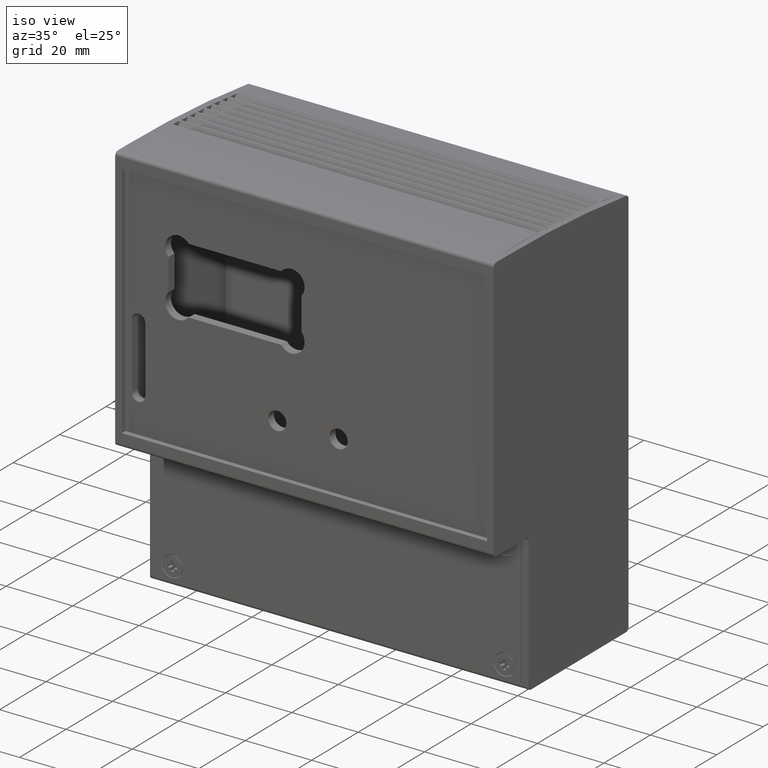
[diagram: clean part render]
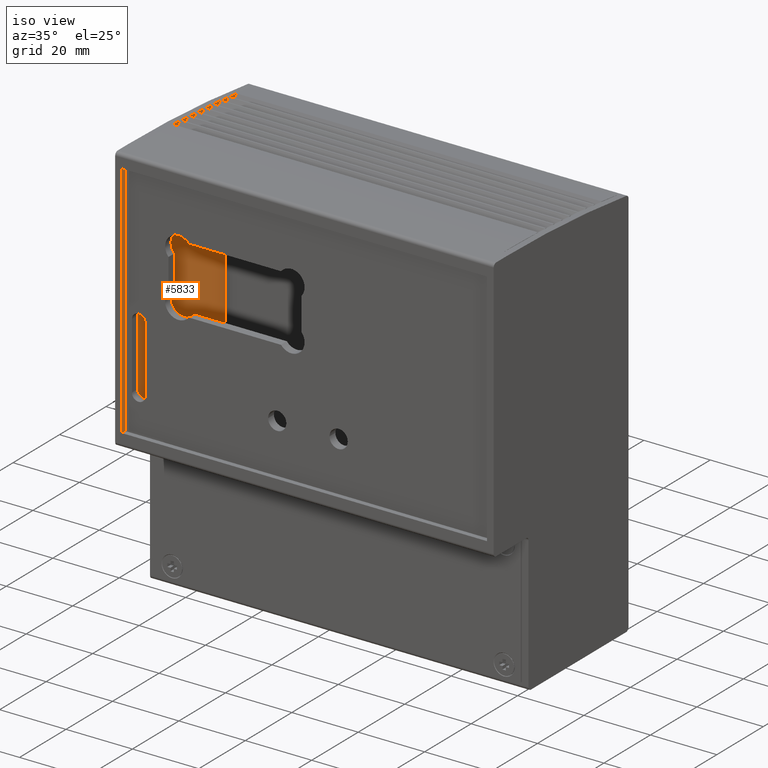
[diagram: same view with one face highlighted and labeled with its STEP entity id]
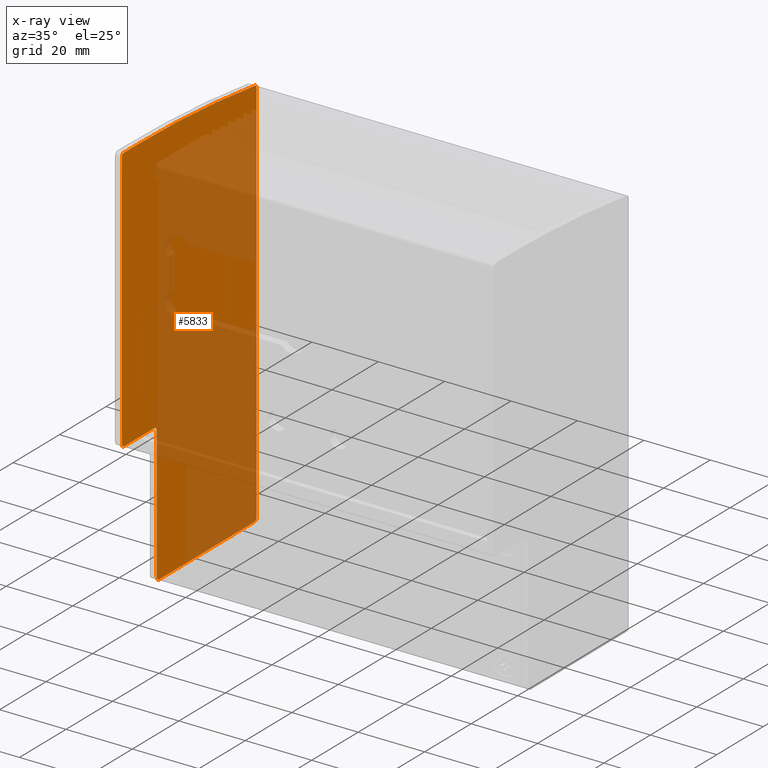
[diagram: x-ray of the same camera — body ghosted, the highlighted face saturated]
A machine part, iso view. The second image highlights one B-rep face of the part: STEP entity #5833.
The next image is the same camera in x-ray: the body ghosted, the highlighted face saturated — about 59% of this face is hidden behind the body in this view.
In plain terms, the highlighted planar face has unit normal (-1, 0, 0).
Its self-contained STEP definition (entity closure, byte-faithful):
#5380=CARTESIAN_POINT('',(-0.999999999999993,-27.627819548872182,52.718976188659155));
#5381=VERTEX_POINT('',#5380);
#5382=CARTESIAN_POINT('',(-0.999999999999993,-28.500000000000053,51.727178748187555));
#5383=VERTEX_POINT('',#5382);
#5384=CARTESIAN_POINT('',(-0.999999999999993,-27.500000000000007,51.727178748187555));
#5385=DIRECTION('',(1.0,0.0,0.0));
#5386=DIRECTION('',(0.0,-0.750939261482659,0.660371278572804));
#5387=AXIS2_PLACEMENT_3D('',#5384,#5385,#5386);
#5388=CIRCLE('',#5387,1.0);
#5389=EDGE_CURVE('',#5381,#5383,#5388,.T.);
#5532=CARTESIAN_POINT('',(-0.999999999999993,-28.500000000000053,-65.000000000000028));
#5533=VERTEX_POINT('',#5532);
#5534=CARTESIAN_POINT('',(-0.999999999999993,-28.500000000000053,51.727178748187555));
#5535=DIRECTION('',(0.0,0.0,-1.0));
#5536=VECTOR('',#5535,116.727178748187580);
#5537=LINE('',#5534,#5536);
#5538=EDGE_CURVE('',#5383,#5533,#5537,.T.);
#5555=CARTESIAN_POINT('',(-0.999999999999993,28.499999999999957,55.999999999999972));
#5556=VERTEX_POINT('',#5555);
#5557=CARTESIAN_POINT('',(-0.999999999999993,23.499999999999901,55.999999999999972));
#5558=VERTEX_POINT('',#5557);
#5559=CARTESIAN_POINT('',(-0.999999999999993,28.499999999999957,55.999999999999972));
#5560=DIRECTION('',(0.0,-1.0,0.0));
#5561=VECTOR('',#5560,5.000000000000057);
#5562=LINE('',#5559,#5561);
#5563=EDGE_CURVE('',#5556,#5558,#5562,.T.);
#5589=CARTESIAN_POINT('',(-0.999999999999993,23.499999999999915,-344.000000000000060));
#5590=DIRECTION('',(1.0,0.0,0.0));
#5591=DIRECTION('',(0.0,-1.0,0.0));
#5592=AXIS2_PLACEMENT_3D('',#5589,#5590,#5591);
#5593=CIRCLE('',#5592,400.0);
#5594=EDGE_CURVE('',#5558,#5381,#5593,.T.);
#5604=CARTESIAN_POINT('',(-0.999999999999993,-27.500000000000053,-66.000000000000028));
#5605=VERTEX_POINT('',#5604);
#5606=CARTESIAN_POINT('',(-0.999999999999993,-27.500000000000053,-65.000000000000028));
#5607=DIRECTION('',(1.0,0.0,0.0));
#5608=DIRECTION('',(0.0,-1.0,0.0));
#5609=AXIS2_PLACEMENT_3D('',#5606,#5607,#5608);
#5610=CIRCLE('',#5609,1.0);
#5611=EDGE_CURVE('',#5533,#5605,#5610,.T.);
#5629=CARTESIAN_POINT('',(-0.999999999999993,13.499999999999943,-66.000000000000028));
#5630=VERTEX_POINT('',#5629);
#5631=CARTESIAN_POINT('',(-0.999999999999993,-27.500000000000053,-66.000000000000028));
#5632=DIRECTION('',(0.0,1.0,0.0));
#5633=VECTOR('',#5632,41.0);
#5634=LINE('',#5631,#5633);
#5635=EDGE_CURVE('',#5605,#5630,#5634,.T.);
#5653=CARTESIAN_POINT('',(-0.999999999999993,14.499999999999943,-65.000000000000028));
#5654=VERTEX_POINT('',#5653);
#5655=CARTESIAN_POINT('',(-0.999999999999993,13.499999999999943,-65.000000000000028));
#5656=DIRECTION('',(1.0,0.0,0.0));
#5657=DIRECTION('',(0.0,-1.0,0.0));
#5658=AXIS2_PLACEMENT_3D('',#5655,#5656,#5657);
#5659=CIRCLE('',#5658,1.0);
#5660=EDGE_CURVE('',#5630,#5654,#5659,.T.);
#5678=CARTESIAN_POINT('',(-0.999999999999993,14.499999999999943,-25.000000000000028));
#5679=VERTEX_POINT('',#5678);
#5680=CARTESIAN_POINT('',(-0.999999999999993,14.499999999999943,-65.000000000000028));
#5681=DIRECTION('',(0.0,0.0,1.0));
#5682=VECTOR('',#5681,40.0);
#5683=LINE('',#5680,#5682);
#5684=EDGE_CURVE('',#5654,#5679,#5683,.T.);
#5702=CARTESIAN_POINT('',(-0.999999999999993,15.499999999999943,-24.000000000000028));
#5703=VERTEX_POINT('',#5702);
#5704=CARTESIAN_POINT('',(-0.999999999999993,15.499999999999943,-25.000000000000028));
#5705=DIRECTION('',(-1.0,0.0,0.0));
#5706=DIRECTION('',(0.0,-1.0,0.0));
#5707=AXIS2_PLACEMENT_3D('',#5704,#5705,#5706);
#5708=CIRCLE('',#5707,1.0);
#5709=EDGE_CURVE('',#5679,#5703,#5708,.T.);
#5727=CARTESIAN_POINT('',(-0.999999999999993,28.499999999999943,-24.000000000000028));
#5728=VERTEX_POINT('',#5727);
#5729=CARTESIAN_POINT('',(-0.999999999999993,15.499999999999943,-24.000000000000028));
#5730=DIRECTION('',(0.0,1.0,0.0));
#5731=VECTOR('',#5730,13.0);
#5732=LINE('',#5729,#5731);
#5733=EDGE_CURVE('',#5703,#5728,#5732,.T.);
#5751=CARTESIAN_POINT('',(-0.999999999999993,29.499999999999943,-23.000000000000028));
#5752=VERTEX_POINT('',#5751);
#5753=CARTESIAN_POINT('',(-0.999999999999993,28.499999999999943,-23.000000000000028));
#5754=DIRECTION('',(1.0,0.0,0.0));
#5755=DIRECTION('',(0.0,-1.0,0.0));
#5756=AXIS2_PLACEMENT_3D('',#5753,#5754,#5755);
#5757=CIRCLE('',#5756,1.0);
#5758=EDGE_CURVE('',#5728,#5752,#5757,.T.);
#5776=CARTESIAN_POINT('',(-0.999999999999993,29.499999999999957,54.999999999999972));
#5777=VERTEX_POINT('',#5776);
#5778=CARTESIAN_POINT('',(-0.999999999999993,29.499999999999943,-23.000000000000028));
#5779=DIRECTION('',(0.0,0.0,1.0));
#5780=VECTOR('',#5779,78.0);
#5781=LINE('',#5778,#5780);
#5782=EDGE_CURVE('',#5752,#5777,#5781,.T.);
#5800=CARTESIAN_POINT('',(-0.999999999999993,28.499999999999957,54.999999999999972));
#5801=DIRECTION('',(1.0,0.0,0.0));
#5802=DIRECTION('',(0.0,-1.0,0.0));
#5803=AXIS2_PLACEMENT_3D('',#5800,#5801,#5802);
#5804=CIRCLE('',#5803,1.0);
#5805=EDGE_CURVE('',#5777,#5556,#5804,.T.);
#5813=CARTESIAN_POINT('',(-0.999999999999993,-1.074398871068381,-3.820369653279022));
#5814=DIRECTION('',(1.0,0.0,0.0));
#5815=DIRECTION('',(0.0,0.0,-1.0));
#5816=AXIS2_PLACEMENT_3D('',#5813,#5814,#5815);
#5817=PLANE('',#5816);
#5818=ORIENTED_EDGE('',*,*,#5389,.F.);
#5819=ORIENTED_EDGE('',*,*,#5594,.F.);
#5820=ORIENTED_EDGE('',*,*,#5563,.F.);
#5821=ORIENTED_EDGE('',*,*,#5805,.F.);
#5822=ORIENTED_EDGE('',*,*,#5782,.F.);
#5823=ORIENTED_EDGE('',*,*,#5758,.F.);
#5824=ORIENTED_EDGE('',*,*,#5733,.F.);
#5825=ORIENTED_EDGE('',*,*,#5709,.F.);
#5826=ORIENTED_EDGE('',*,*,#5684,.F.);
#5827=ORIENTED_EDGE('',*,*,#5660,.F.);
#5828=ORIENTED_EDGE('',*,*,#5635,.F.);
#5829=ORIENTED_EDGE('',*,*,#5611,.F.);
#5830=ORIENTED_EDGE('',*,*,#5538,.F.);
#5831=EDGE_LOOP('',(#5818,#5819,#5820,#5821,#5822,#5823,#5824,#5825,#5826,#5827,#5828,#5829,#5830));
#5832=FACE_OUTER_BOUND('',#5831,.T.);
#5833=ADVANCED_FACE('',(#5832),#5817,.F.);